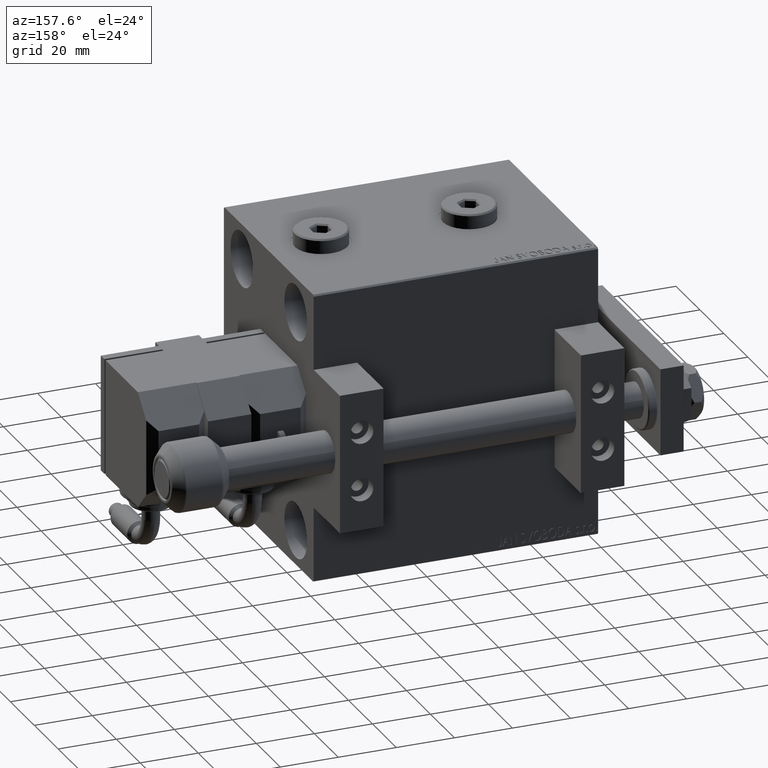
[diagram: clean part render]
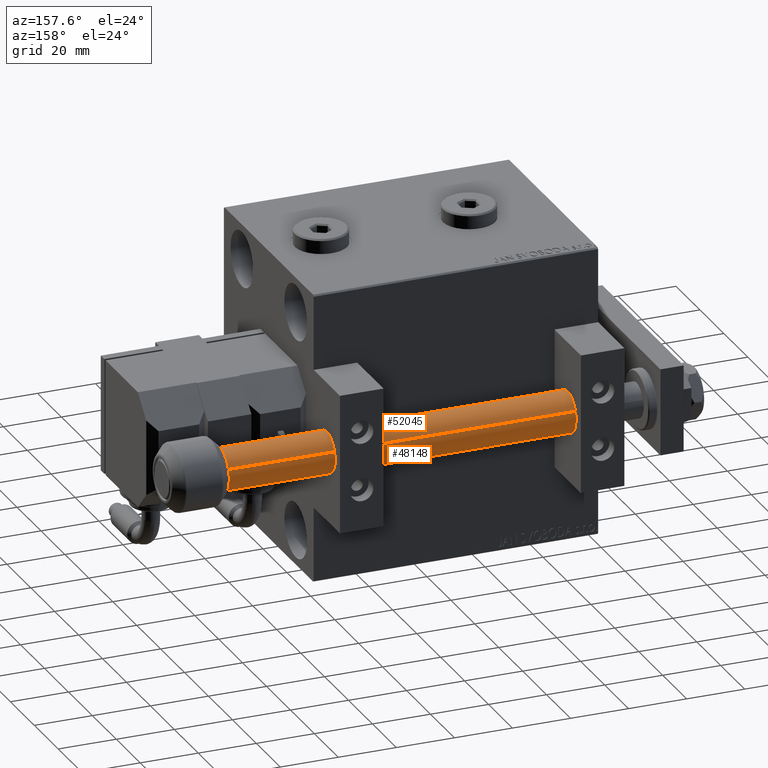
[diagram: same view with one multi-face feature highlighted, each face labeled with its STEP entity id]
A machine part, auxiliary view. The highlighted faces form ONE feature: a constant-radius fillet chain: 2 tangent blend faces with common blend radius 7 mm. The faces share edges in the B-rep.
Their STEP definitions:
[1] entity #48148 (Cylinder):
#2409 = DIRECTION ( 'NONE',  ( 0.000000000000000000, 0.000000000000000000, -1.000000000000000000 ) ) ;
#3029 = AXIS2_PLACEMENT_3D ( 'NONE', #42950, #47447, #11075 ) ;
#5359 = LINE ( 'NONE', #16764, #47586 ) ;
#6026 = CYLINDRICAL_SURFACE ( 'NONE', #18135, 7.000000000000000000 ) ;
#6808 = EDGE_CURVE ( 'NONE', #46173, #23483, #5359, .T. ) ;
#7047 = ORIENTED_EDGE ( 'NONE', *, *, #42715, .T. ) ;
#9193 = CARTESIAN_POINT ( 'NONE',  ( 7.000000000000000000, 8.572527594031473190E-16, 2.000000000000029310 ) ) ;
#10082 = LINE ( 'NONE', #29488, #51302 ) ;
#10980 = CARTESIAN_POINT ( 'NONE',  ( -0.4999999999999992784, 6.982120021884415273, 152.0000000000000000 ) ) ;
#11075 = DIRECTION ( 'NONE',  ( 1.000000000000000000, 0.000000000000000000, 0.000000000000000000 ) ) ;
#12158 = DIRECTION ( 'NONE',  ( 0.000000000000000000, 0.000000000000000000, -1.000000000000000000 ) ) ;
#13720 = CIRCLE ( 'NONE', #50194, 7.000000000000000000 ) ;
#14089 = DIRECTION ( 'NONE',  ( 0.000000000000000000, 0.000000000000000000, -1.000000000000000000 ) ) ;
#14253 = CARTESIAN_POINT ( 'NONE',  ( 7.000000000000000000, 8.572527594031473190E-16, 151.9999999999999432 ) ) ;
#15192 = CARTESIAN_POINT ( 'NONE',  ( -7.000000000000000000, 0.000000000000000000, 151.9999999999999432 ) ) ;
#15320 = ORIENTED_EDGE ( 'NONE', *, *, #28532, .T. ) ;
#15845 = VERTEX_POINT ( 'NONE', #33952 ) ;
#15847 = EDGE_LOOP ( 'NONE', ( #15320, #46390, #49097, #41057, #7047, #50740 ) ) ;
#16764 = CARTESIAN_POINT ( 'NONE',  ( -7.000000000000000000, 0.000000000000000000, 153.0000000000000000 ) ) ;
#18135 = AXIS2_PLACEMENT_3D ( 'NONE', #47413, #46376, #22218 ) ;
#18746 = EDGE_CURVE ( 'NONE', #49774, #48061, #10082, .T. ) ;
#19852 = DIRECTION ( 'NONE',  ( 1.000000000000000000, -1.776356839400250465E-15, 0.000000000000000000 ) ) ;
#20233 = EDGE_CURVE ( 'NONE', #48061, #23483, #34397, .T. ) ;
#22218 = DIRECTION ( 'NONE',  ( -1.000000000000000000, 0.000000000000000000, 0.000000000000000000 ) ) ;
#23483 = VERTEX_POINT ( 'NONE', #27841 ) ;
#25540 = DIRECTION ( 'NONE',  ( -0.000000000000000000, -0.000000000000000000, -1.000000000000000000 ) ) ;
#27841 = CARTESIAN_POINT ( 'NONE',  ( -7.000000000000000000, 0.000000000000000000, 2.000000000000029310 ) ) ;
#28532 = EDGE_CURVE ( 'NONE', #15845, #49774, #29460, .T. ) ;
#29460 = CIRCLE ( 'NONE', #36220, 7.000000000000000000 ) ;
#29488 = CARTESIAN_POINT ( 'NONE',  ( 7.000000000000000000, 8.572527594031473190E-16, 153.0000000000000000 ) ) ;
#30708 = FACE_OUTER_BOUND ( 'NONE', #15847, .T. ) ;
#33952 = CARTESIAN_POINT ( 'NONE',  ( 0.5000000000000041078, 6.982120021884470340, 151.9999999999999432 ) ) ;
#34397 = CIRCLE ( 'NONE', #3029, 7.000000000000000000 ) ;
#36220 = AXIS2_PLACEMENT_3D ( 'NONE', #50475, #14089, #38252 ) ;
#36937 = EDGE_CURVE ( 'NONE', #41377, #15845, #42378, .T. ) ;
#38252 = DIRECTION ( 'NONE',  ( 1.000000000000000000, -1.776356839400250465E-15, 0.000000000000000000 ) ) ;
#38283 = CARTESIAN_POINT ( 'NONE',  ( 0.000000000000000000, 0.000000000000000000, 151.9999999999999432 ) ) ;
#38548 = DIRECTION ( 'NONE',  ( 1.000000000000000000, 2.842170943040400743E-14, 0.000000000000000000 ) ) ;
#41057 = ORIENTED_EDGE ( 'NONE', *, *, #6808, .F. ) ;
#41377 = VERTEX_POINT ( 'NONE', #10980 ) ;
#42222 = DIRECTION ( 'NONE',  ( -0.000000000000000000, -0.000000000000000000, -1.000000000000000000 ) ) ;
#42378 = CIRCLE ( 'NONE', #49148, 7.000000000000000000 ) ;
#42715 = EDGE_CURVE ( 'NONE', #46173, #41377, #13720, .T. ) ;
#42950 = CARTESIAN_POINT ( 'NONE',  ( 0.000000000000000000, 0.000000000000000000, 2.000000000000029310 ) ) ;
#46173 = VERTEX_POINT ( 'NONE', #15192 ) ;
#46376 = DIRECTION ( 'NONE',  ( -0.000000000000000000, -0.000000000000000000, -1.000000000000000000 ) ) ;
#46390 = ORIENTED_EDGE ( 'NONE', *, *, #18746, .T. ) ;
#47413 = CARTESIAN_POINT ( 'NONE',  ( 0.000000000000000000, 0.000000000000000000, 153.0000000000000000 ) ) ;
#47447 = DIRECTION ( 'NONE',  ( -0.000000000000000000, -0.000000000000000000, 1.000000000000000000 ) ) ;
#47586 = VECTOR ( 'NONE', #25540, 1000.000000000000000 ) ;
#48061 = VERTEX_POINT ( 'NONE', #9193 ) ;
#48148 = ADVANCED_FACE ( 'NONE', ( #30708 ), #6026, .T. ) ;
#48534 = CARTESIAN_POINT ( 'NONE',  ( 0.000000000000000000, 0.000000000000000000, 151.9999999999999432 ) ) ;
#49097 = ORIENTED_EDGE ( 'NONE', *, *, #20233, .T. ) ;
#49148 = AXIS2_PLACEMENT_3D ( 'NONE', #38283, #2409, #38548 ) ;
#49774 = VERTEX_POINT ( 'NONE', #14253 ) ;
#50194 = AXIS2_PLACEMENT_3D ( 'NONE', #48534, #12158, #19852 ) ;
#50475 = CARTESIAN_POINT ( 'NONE',  ( 0.000000000000000000, 0.000000000000000000, 151.9999999999999432 ) ) ;
#50740 = ORIENTED_EDGE ( 'NONE', *, *, #36937, .T. ) ;
#51302 = VECTOR ( 'NONE', #42222, 1000.000000000000000 ) ;
[2] entity #52045 (Cylinder):
#126 = DIRECTION ( 'NONE',  ( 1.000000000000000000, 0.000000000000000000, 0.000000000000000000 ) ) ;
#1267 = CARTESIAN_POINT ( 'NONE',  ( 0.000000000000000000, 0.000000000000000000, 151.9999999999999432 ) ) ;
#3779 = ORIENTED_EDGE ( 'NONE', *, *, #6808, .T. ) ;
#4083 = ORIENTED_EDGE ( 'NONE', *, *, #16569, .T. ) ;
#5359 = LINE ( 'NONE', #16764, #47586 ) ;
#6808 = EDGE_CURVE ( 'NONE', #46173, #23483, #5359, .T. ) ;
#8895 = CARTESIAN_POINT ( 'NONE',  ( 0.000000000000000000, 0.000000000000000000, 2.000000000000029310 ) ) ;
#9193 = CARTESIAN_POINT ( 'NONE',  ( 7.000000000000000000, 8.572527594031473190E-16, 2.000000000000029310 ) ) ;
#9987 = VERTEX_POINT ( 'NONE', #17389 ) ;
#10082 = LINE ( 'NONE', #29488, #51302 ) ;
#11326 = EDGE_CURVE ( 'NONE', #23835, #9987, #12134, .T. ) ;
#12134 = CIRCLE ( 'NONE', #34188, 7.000000000000000000 ) ;
#13915 = DIRECTION ( 'NONE',  ( 1.000000000000000000, 0.000000000000000000, 0.000000000000000000 ) ) ;
#14253 = CARTESIAN_POINT ( 'NONE',  ( 7.000000000000000000, 8.572527594031473190E-16, 151.9999999999999432 ) ) ;
#15192 = CARTESIAN_POINT ( 'NONE',  ( -7.000000000000000000, 0.000000000000000000, 151.9999999999999432 ) ) ;
#16569 = EDGE_CURVE ( 'NONE', #49774, #23835, #38641, .T. ) ;
#16764 = CARTESIAN_POINT ( 'NONE',  ( -7.000000000000000000, 0.000000000000000000, 153.0000000000000000 ) ) ;
#17005 = CARTESIAN_POINT ( 'NONE',  ( 0.000000000000000000, 0.000000000000000000, 151.9999999999999432 ) ) ;
#17389 = CARTESIAN_POINT ( 'NONE',  ( -0.4999999999999975020, -6.982120021884415273, 152.0000000000000000 ) ) ;
#17470 = DIRECTION ( 'NONE',  ( 1.000000000000000000, 0.000000000000000000, 0.000000000000000000 ) ) ;
#18539 = ORIENTED_EDGE ( 'NONE', *, *, #11326, .T. ) ;
#18746 = EDGE_CURVE ( 'NONE', #49774, #48061, #10082, .T. ) ;
#20067 = CIRCLE ( 'NONE', #38752, 7.000000000000000000 ) ;
#22690 = DIRECTION ( 'NONE',  ( -1.000000000000000000, 0.000000000000000000, 0.000000000000000000 ) ) ;
#23483 = VERTEX_POINT ( 'NONE', #27841 ) ;
#23835 = VERTEX_POINT ( 'NONE', #36249 ) ;
#24892 = EDGE_LOOP ( 'NONE', ( #40745, #4083, #18539, #38048, #3779, #51266 ) ) ;
#25540 = DIRECTION ( 'NONE',  ( -0.000000000000000000, -0.000000000000000000, -1.000000000000000000 ) ) ;
#26137 = DIRECTION ( 'NONE',  ( 0.000000000000000000, 0.000000000000000000, -1.000000000000000000 ) ) ;
#27133 = EDGE_CURVE ( 'NONE', #23483, #48061, #20067, .T. ) ;
#27841 = CARTESIAN_POINT ( 'NONE',  ( -7.000000000000000000, 0.000000000000000000, 2.000000000000029310 ) ) ;
#28692 = AXIS2_PLACEMENT_3D ( 'NONE', #1267, #37122, #17470 ) ;
#29488 = CARTESIAN_POINT ( 'NONE',  ( 7.000000000000000000, 8.572527594031473190E-16, 153.0000000000000000 ) ) ;
#30056 = AXIS2_PLACEMENT_3D ( 'NONE', #43657, #39665, #22690 ) ;
#30245 = EDGE_CURVE ( 'NONE', #9987, #46173, #40551, .T. ) ;
#30668 = FACE_OUTER_BOUND ( 'NONE', #24892, .T. ) ;
#33231 = DIRECTION ( 'NONE',  ( 0.000000000000000000, 0.000000000000000000, -1.000000000000000000 ) ) ;
#34188 = AXIS2_PLACEMENT_3D ( 'NONE', #45780, #26137, #13915 ) ;
#34900 = CYLINDRICAL_SURFACE ( 'NONE', #30056, 7.000000000000000000 ) ;
#35699 = DIRECTION ( 'NONE',  ( 1.000000000000000000, 0.000000000000000000, 0.000000000000000000 ) ) ;
#36249 = CARTESIAN_POINT ( 'NONE',  ( 0.5000000000000001110, -6.982120021884415273, 152.0000000000000000 ) ) ;
#36907 = AXIS2_PLACEMENT_3D ( 'NONE', #17005, #33231, #35699 ) ;
#37122 = DIRECTION ( 'NONE',  ( 0.000000000000000000, 0.000000000000000000, -1.000000000000000000 ) ) ;
#38048 = ORIENTED_EDGE ( 'NONE', *, *, #30245, .T. ) ;
#38641 = CIRCLE ( 'NONE', #36907, 7.000000000000000000 ) ;
#38752 = AXIS2_PLACEMENT_3D ( 'NONE', #8895, #41292, #126 ) ;
#39665 = DIRECTION ( 'NONE',  ( -0.000000000000000000, -0.000000000000000000, -1.000000000000000000 ) ) ;
#40551 = CIRCLE ( 'NONE', #28692, 7.000000000000000000 ) ;
#40745 = ORIENTED_EDGE ( 'NONE', *, *, #18746, .F. ) ;
#41292 = DIRECTION ( 'NONE',  ( -0.000000000000000000, -0.000000000000000000, 1.000000000000000000 ) ) ;
#42222 = DIRECTION ( 'NONE',  ( -0.000000000000000000, -0.000000000000000000, -1.000000000000000000 ) ) ;
#43657 = CARTESIAN_POINT ( 'NONE',  ( 0.000000000000000000, 0.000000000000000000, 153.0000000000000000 ) ) ;
#45780 = CARTESIAN_POINT ( 'NONE',  ( 0.000000000000000000, 0.000000000000000000, 151.9999999999999432 ) ) ;
#46173 = VERTEX_POINT ( 'NONE', #15192 ) ;
#47586 = VECTOR ( 'NONE', #25540, 1000.000000000000000 ) ;
#48061 = VERTEX_POINT ( 'NONE', #9193 ) ;
#49774 = VERTEX_POINT ( 'NONE', #14253 ) ;
#51266 = ORIENTED_EDGE ( 'NONE', *, *, #27133, .T. ) ;
#51302 = VECTOR ( 'NONE', #42222, 1000.000000000000000 ) ;
#52045 = ADVANCED_FACE ( 'NONE', ( #30668 ), #34900, .T. ) ;